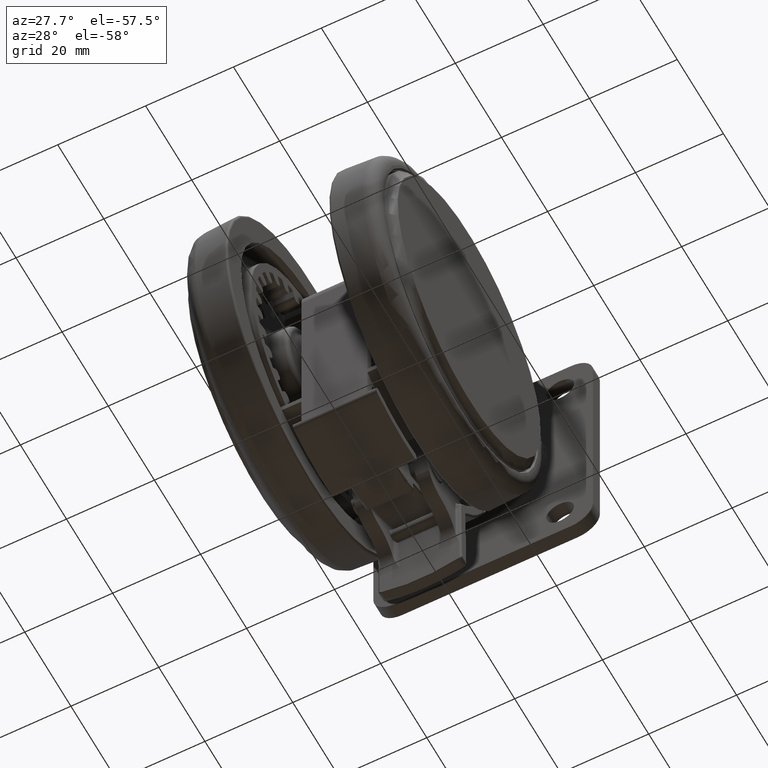
[diagram: clean part render]
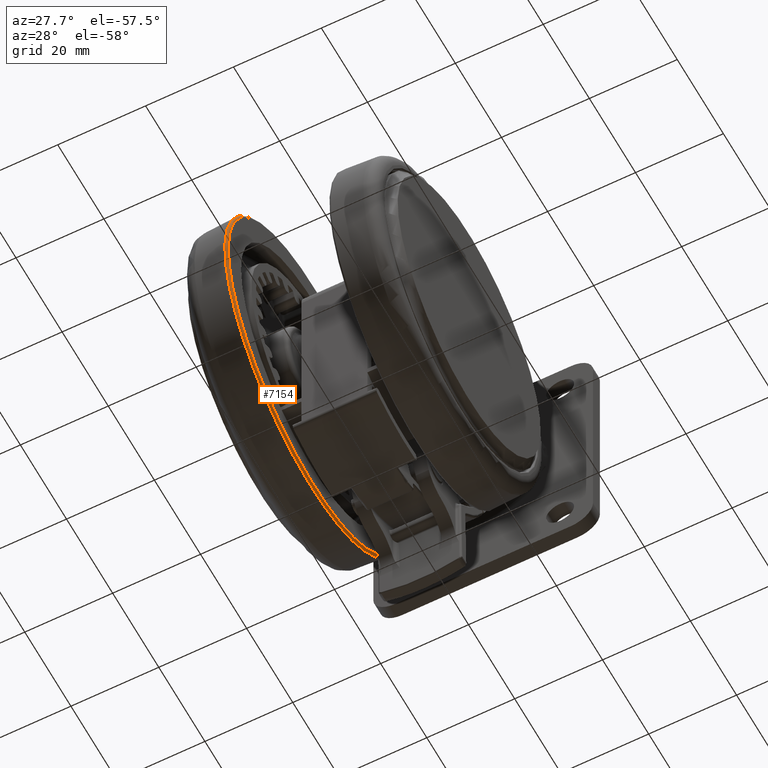
[diagram: same view with one face highlighted and labeled with its STEP entity id]
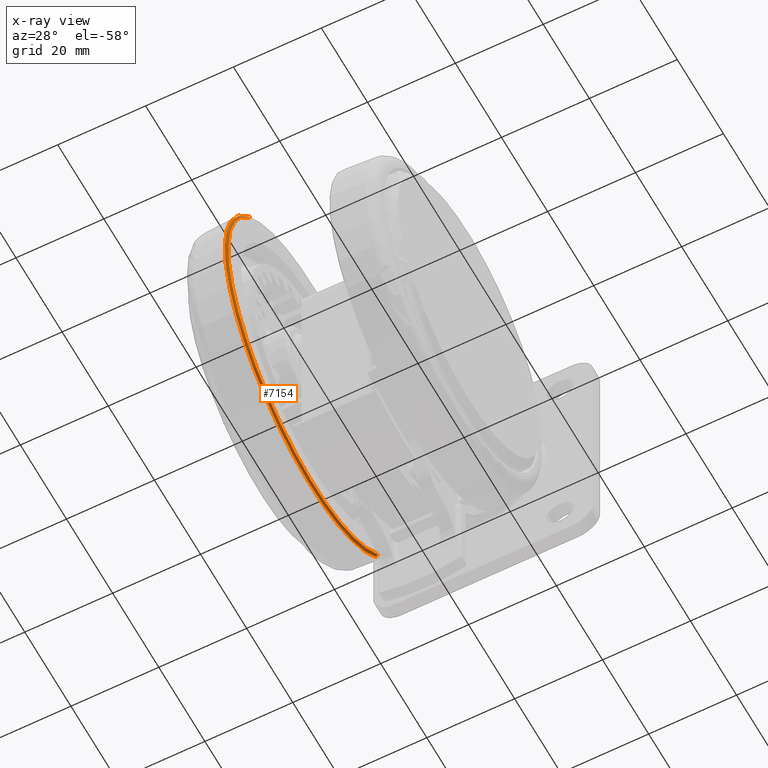
[diagram: x-ray of the same camera — body ghosted, the highlighted face saturated]
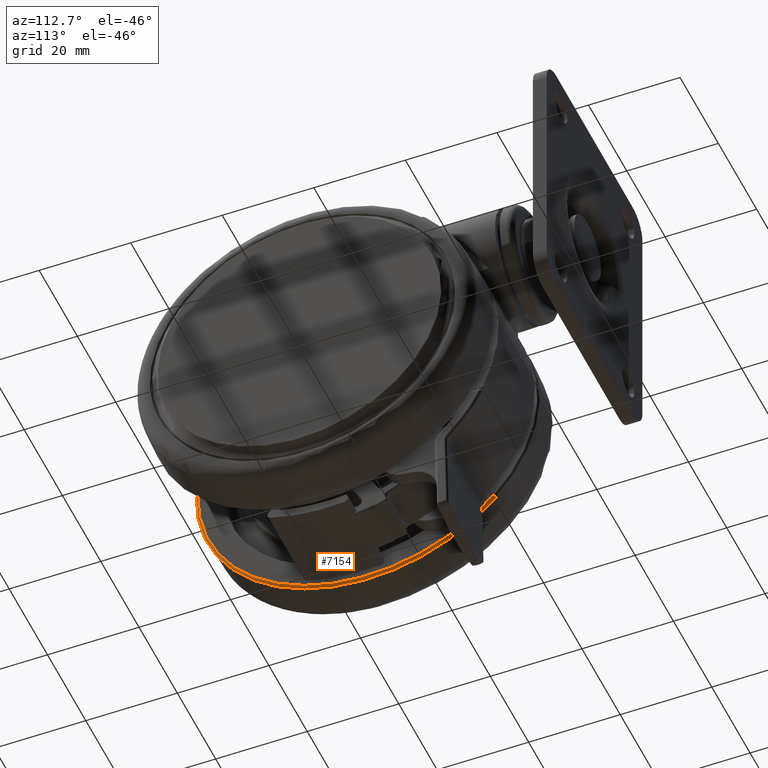
[diagram: same view with one face highlighted and labeled with its STEP entity id]
A machine part, auxiliary view. The second image highlights one B-rep face of the part: STEP entity #7154.
The next image is the same camera in x-ray: the body ghosted, the highlighted face saturated — about 0% of this face is hidden behind the body in this view.
A second angle (auxiliary view) of the same face is appended — the face is thin or edge-on in the first view.
In plain terms, the highlighted toroidal blend (fillet) surface has major radius 37.0007 mm and minor (blend) radius 0.5 mm.
Its self-contained STEP definition (entity closure, byte-faithful):
#1008 = VERTEX_POINT ( 'NONE', #25841 ) ;
#3791 = AXIS2_PLACEMENT_3D ( 'NONE', #27560, #67758, #33359 ) ;
#4059 = ORIENTED_EDGE ( 'NONE', *, *, #48206, .T. ) ;
#5052 = CARTESIAN_POINT ( 'NONE',  ( -2.081668171172168500E-014, 8.326672684688674100E-014, -35.89999999999988500 ) ) ;
#5582 = AXIS2_PLACEMENT_3D ( 'NONE', #44604, #10211, #50371 ) ;
#7154 = ADVANCED_FACE ( 'NONE', ( #29165 ), #19363, .T. ) ;
#10211 = DIRECTION ( 'NONE',  ( 0.0000000000000000000, -0.0000000000000000000, -1.000000000000000000 ) ) ;
#15199 = CARTESIAN_POINT ( 'NONE',  ( -2.081668171172168500E-014, 8.326672684688674100E-014, -35.92616797812134900 ) ) ;
#19363 = TOROIDAL_SURFACE ( 'NONE', #29348, 37.00068523262270800, 0.5000000000000036600 ) ;
#21004 = DIRECTION ( 'NONE',  ( 0.8802695927263515200, -0.4744738603141202000, 0.0000000000000000000 ) ) ;
#22108 = DIRECTION ( 'NONE',  ( 0.0000000000000000000, -0.0000000000000000000, -1.000000000000000000 ) ) ;
#25525 = EDGE_CURVE ( 'NONE', #46372, #69620, #58342, .T. ) ;
#25841 = CARTESIAN_POINT ( 'NONE',  ( -32.57057812031674600, 17.55585795659023800, -35.39999999999987800 ) ) ;
#27560 = CARTESIAN_POINT ( 'NONE',  ( 32.57057812031670400, -17.55585795659007400, -35.89999999999988500 ) ) ;
#27652 = EDGE_CURVE ( 'NONE', #1008, #46372, #52537, .T. ) ;
#29165 = FACE_OUTER_BOUND ( 'NONE', #62747, .T. ) ;
#29348 = AXIS2_PLACEMENT_3D ( 'NONE', #5052, #22108, #62490 ) ;
#29377 = DIRECTION ( 'NONE',  ( -0.4744738603141200900, -0.8802695927263516400, 0.0000000000000000000 ) ) ;
#30383 = CARTESIAN_POINT ( 'NONE',  ( -33.01010972723820900, 17.79276976177959600, -35.92616797812134900 ) ) ;
#33359 = DIRECTION ( 'NONE',  ( -0.8802695927263521900, 0.4744738603141189800, 0.0000000000000000000 ) ) ;
#36520 = EDGE_CURVE ( 'NONE', #1008, #49860, #68736, .T. ) ;
#41989 = ORIENTED_EDGE ( 'NONE', *, *, #25525, .F. ) ;
#44604 = CARTESIAN_POINT ( 'NONE',  ( -2.081668171172168500E-014, 8.326672684688674100E-014, -35.39999999999987800 ) ) ;
#45214 = CARTESIAN_POINT ( 'NONE',  ( 32.57057812031670400, -17.55585795659007400, -35.39999999999987800 ) ) ;
#46372 = VERTEX_POINT ( 'NONE', #30383 ) ;
#46578 = ORIENTED_EDGE ( 'NONE', *, *, #36520, .T. ) ;
#48206 = EDGE_CURVE ( 'NONE', #49860, #69620, #50805, .T. ) ;
#48687 = AXIS2_PLACEMENT_3D ( 'NONE', #15199, #55347, #21004 ) ;
#49860 = VERTEX_POINT ( 'NONE', #45214 ) ;
#50371 = DIRECTION ( 'NONE',  ( 0.8802695927263515200, -0.4744738603141202000, 0.0000000000000000000 ) ) ;
#50805 = CIRCLE ( 'NONE', #3791, 0.5000000000000027800 ) ;
#51161 = AXIS2_PLACEMENT_3D ( 'NONE', #63783, #29377, #69541 ) ;
#52537 = CIRCLE ( 'NONE', #51161, 0.5000000000000027800 ) ;
#53536 = CARTESIAN_POINT ( 'NONE',  ( 33.01010972723816600, -17.79276976177943200, -35.92616797812134900 ) ) ;
#55347 = DIRECTION ( 'NONE',  ( 0.0000000000000000000, -0.0000000000000000000, -1.000000000000000000 ) ) ;
#58342 = CIRCLE ( 'NONE', #48687, 37.50000000000000700 ) ;
#62490 = DIRECTION ( 'NONE',  ( 0.8802695927263516400, -0.4744738603141202000, 0.0000000000000000000 ) ) ;
#62747 = EDGE_LOOP ( 'NONE', ( #68627, #46578, #4059, #41989 ) ) ;
#63783 = CARTESIAN_POINT ( 'NONE',  ( -32.57057812031675300, 17.55585795659023800, -35.89999999999988500 ) ) ;
#67758 = DIRECTION ( 'NONE',  ( 0.4744738603141202000, 0.8802695927263515200, 0.0000000000000000000 ) ) ;
#68627 = ORIENTED_EDGE ( 'NONE', *, *, #27652, .F. ) ;
#68736 = CIRCLE ( 'NONE', #5582, 37.00068523262271500 ) ;
#69541 = DIRECTION ( 'NONE',  ( 0.8802695927263521900, -0.4744738603141189800, 0.0000000000000000000 ) ) ;
#69620 = VERTEX_POINT ( 'NONE', #53536 ) ;